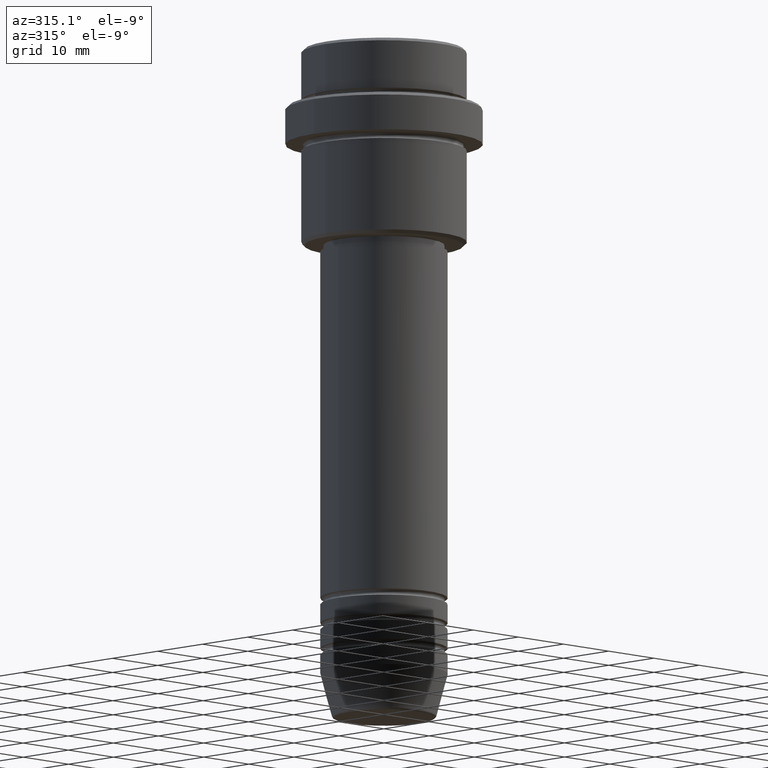
[diagram: clean part render]
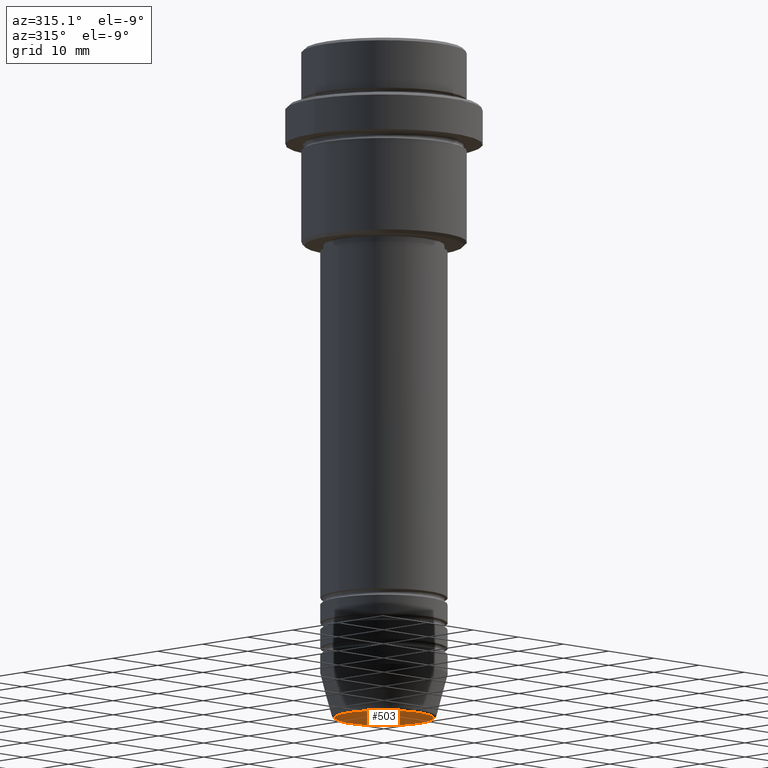
[diagram: same view with one face highlighted and labeled with its STEP entity id]
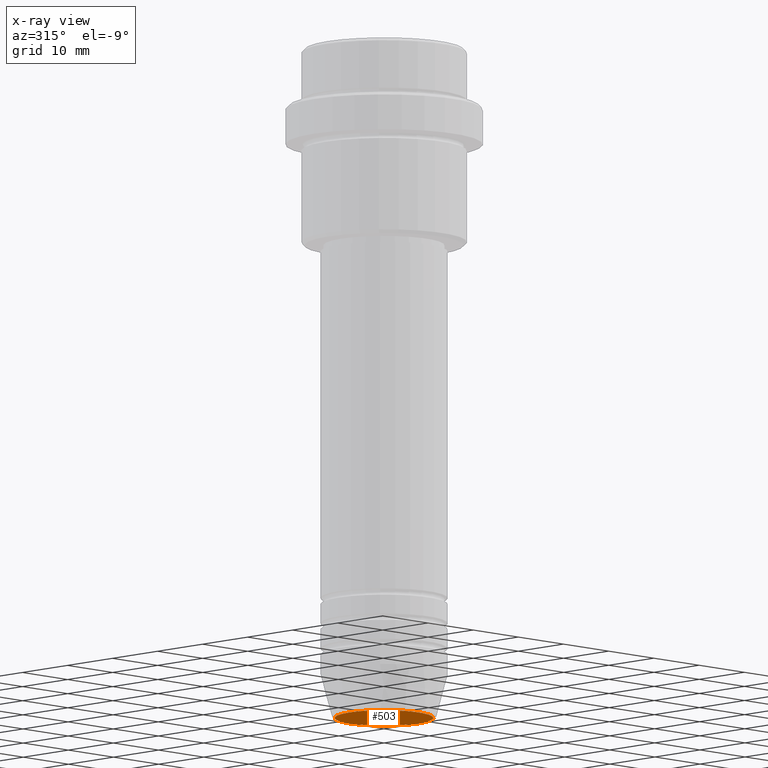
[diagram: x-ray of the same camera — body ghosted, the highlighted face saturated]
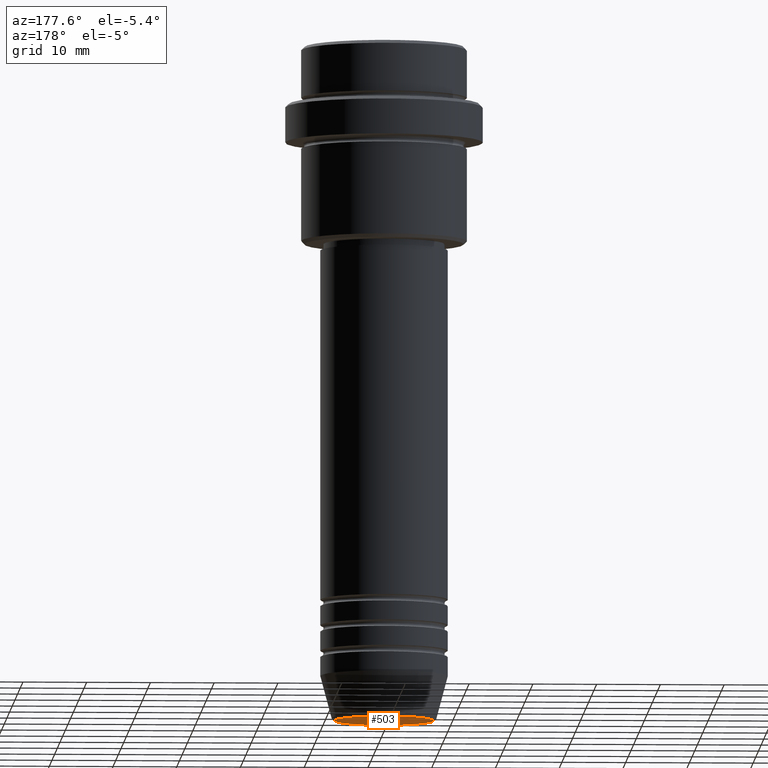
[diagram: same view with one face highlighted and labeled with its STEP entity id]
A machine part, auxiliary view. The second image highlights one B-rep face of the part: STEP entity #503.
The next image is the same camera in x-ray: the body ghosted, the highlighted face saturated — about 0% of this face is hidden behind the body in this view.
A second angle (auxiliary view) of the same face is appended — the face is thin or edge-on in the first view.
In plain terms, the highlighted planar face has unit normal (0, -0, 1).
Its self-contained STEP definition (entity closure, byte-faithful):
#5 = ORIENTED_EDGE ( 'NONE', *, *, #536, .T. ) ;
#6 = ORIENTED_EDGE ( 'NONE', *, *, #58, .T. ) ;
#22 = DIRECTION ( 'NONE',  ( 1.000000000000000000, 0.000000000000000000, 0.000000000000000000 ) ) ;
#38 = FACE_OUTER_BOUND ( 'NONE', #271, .T. ) ;
#58 = EDGE_CURVE ( 'NONE', #203, #712, #329, .T. ) ;
#80 = AXIS2_PLACEMENT_3D ( 'NONE', #730, #215, #660 ) ;
#136 = DIRECTION ( 'NONE',  ( 0.000000000000000000, -0.000000000000000000, 1.000000000000000000 ) ) ;
#169 = DIRECTION ( 'NONE',  ( 0.000000000000000000, 0.000000000000000000, -1.000000000000000000 ) ) ;
#203 = VERTEX_POINT ( 'NONE', #1399 ) ;
#215 = DIRECTION ( 'NONE',  ( 0.000000000000000000, 0.000000000000000000, -1.000000000000000000 ) ) ;
#271 = EDGE_LOOP ( 'NONE', ( #5, #6 ) ) ;
#329 = CIRCLE ( 'NONE', #80, 7.740692158992658278 ) ;
#417 = CARTESIAN_POINT ( 'NONE',  ( 0.000000000000000000, 0.000000000000000000, -106.0000000000000000 ) ) ;
#426 = AXIS2_PLACEMENT_3D ( 'NONE', #417, #169, #1374 ) ;
#502 = CARTESIAN_POINT ( 'NONE',  ( 7.740692158992658278, 0.000000000000000000, -106.0000000000000000 ) ) ;
#503 = ADVANCED_FACE ( 'NONE', ( #38 ), #1257, .F. ) ;
#536 = EDGE_CURVE ( 'NONE', #712, #203, #1037, .T. ) ;
#660 = DIRECTION ( 'NONE',  ( 1.000000000000000000, 0.000000000000000000, 0.000000000000000000 ) ) ;
#665 = CARTESIAN_POINT ( 'NONE',  ( 0.000000000000000000, 0.000000000000000000, -106.0000000000000000 ) ) ;
#708 = AXIS2_PLACEMENT_3D ( 'NONE', #665, #136, #22 ) ;
#712 = VERTEX_POINT ( 'NONE', #502 ) ;
#730 = CARTESIAN_POINT ( 'NONE',  ( 0.000000000000000000, 0.000000000000000000, -106.0000000000000000 ) ) ;
#1037 = CIRCLE ( 'NONE', #426, 7.740692158992658278 ) ;
#1257 = PLANE ( 'NONE',  #708 ) ;
#1374 = DIRECTION ( 'NONE',  ( 1.000000000000000000, 0.000000000000000000, 0.000000000000000000 ) ) ;
#1399 = CARTESIAN_POINT ( 'NONE',  ( -7.740692158992658278, 9.775343368540041107E-16, -106.0000000000000000 ) ) ;